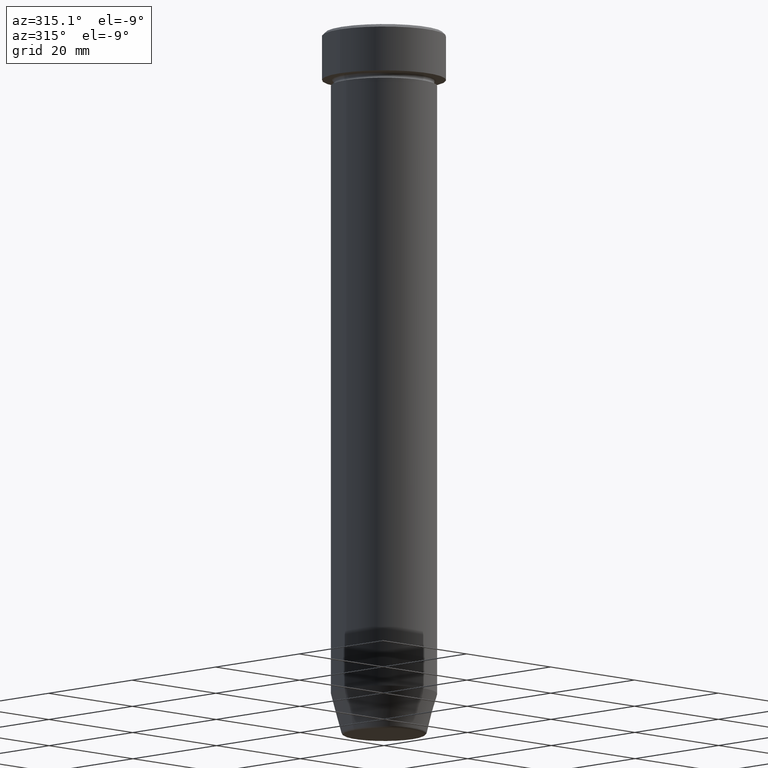
[diagram: clean part render]
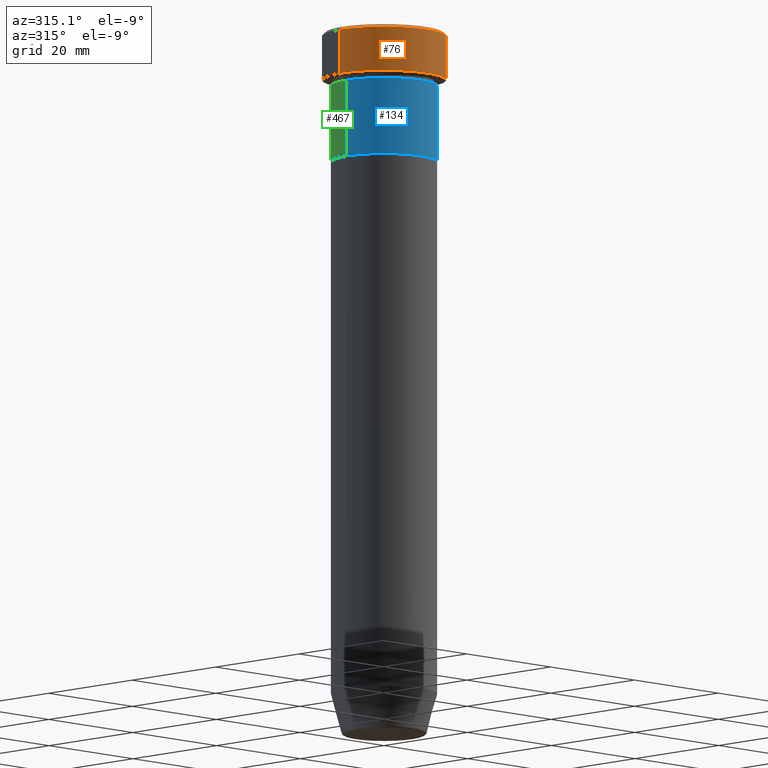
[diagram: same view with three faces highlighted in distinct colors, each labeled with its STEP entity id]
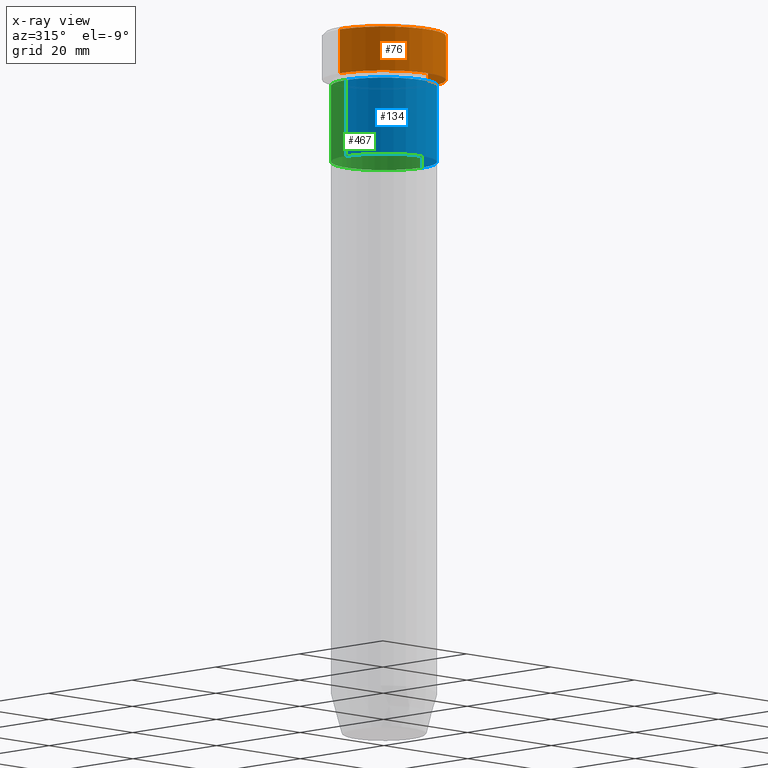
[diagram: x-ray of the same camera — body ghosted, the three highlighted faces saturated]
A machine part, auxiliary view with three faces highlighted in distinct colors.
The next image is the same camera in x-ray (body ghosted, the three faces saturated) — at least one of them is partly hidden behind the body in this view.
Their STEP definitions:

[orange] entity #76 — the highlighted cylindrical surface (partial cylindrical patch) has radius 10.5 mm, axis along (-0, -0, 1).
#25 = CARTESIAN_POINT ( 'NONE',  ( 10.50000000000000000, 0.000000000000000000, 0.000000000000000000 ) ) ;
#44 = VERTEX_POINT ( 'NONE', #349 ) ;
#47 = EDGE_CURVE ( 'NONE', #522, #480, #388, .T. ) ;
#66 = ORIENTED_EDGE ( 'NONE', *, *, #114, .F. ) ;
#70 = CIRCLE ( 'NONE', #585, 10.50000000000000000 ) ;
#76 = ADVANCED_FACE ( 'NONE', ( #224 ), #262, .T. ) ;
#104 = CARTESIAN_POINT ( 'NONE',  ( 0.000000000000000000, 0.000000000000000000, -8.000000000000000000 ) ) ;
#114 = EDGE_CURVE ( 'NONE', #44, #480, #139, .T. ) ;
#115 = DIRECTION ( 'NONE',  ( -0.000000000000000000, -0.000000000000000000, 1.000000000000000000 ) ) ;
#118 = CARTESIAN_POINT ( 'NONE',  ( -10.50000000000000000, 1.285879139104720831E-15, -0.5000000000000023315 ) ) ;
#126 = AXIS2_PLACEMENT_3D ( 'NONE', #271, #556, #278 ) ;
#139 = LINE ( 'NONE', #589, #206 ) ;
#171 = DIRECTION ( 'NONE',  ( -0.000000000000000000, -0.000000000000000000, 1.000000000000000000 ) ) ;
#190 = CARTESIAN_POINT ( 'NONE',  ( 10.50000000000000000, 0.000000000000000000, -8.000000000000000000 ) ) ;
#206 = VECTOR ( 'NONE', #324, 1000.000000000000000 ) ;
#224 = FACE_OUTER_BOUND ( 'NONE', #260, .T. ) ;
#251 = CARTESIAN_POINT ( 'NONE',  ( 10.50000000000000000, 0.000000000000000000, -0.5000000000000023315 ) ) ;
#260 = EDGE_LOOP ( 'NONE', ( #66, #496, #470, #302 ) ) ;
#262 = CYLINDRICAL_SURFACE ( 'NONE', #460, 10.50000000000000000 ) ;
#271 = CARTESIAN_POINT ( 'NONE',  ( 0.000000000000000000, 0.000000000000000000, -0.5000000000000023315 ) ) ;
#278 = DIRECTION ( 'NONE',  ( 1.000000000000000000, 0.000000000000000000, 0.000000000000000000 ) ) ;
#286 = VERTEX_POINT ( 'NONE', #190 ) ;
#287 = EDGE_CURVE ( 'NONE', #44, #286, #70, .T. ) ;
#302 = ORIENTED_EDGE ( 'NONE', *, *, #47, .T. ) ;
#324 = DIRECTION ( 'NONE',  ( -0.000000000000000000, -0.000000000000000000, 1.000000000000000000 ) ) ;
#349 = CARTESIAN_POINT ( 'NONE',  ( -10.50000000000000000, 1.285879139104720831E-15, -8.000000000000000000 ) ) ;
#372 = DIRECTION ( 'NONE',  ( 1.000000000000000000, 0.000000000000000000, 0.000000000000000000 ) ) ;
#387 = LINE ( 'NONE', #25, #511 ) ;
#388 = CIRCLE ( 'NONE', #126, 10.50000000000000000 ) ;
#410 = CARTESIAN_POINT ( 'NONE',  ( 0.000000000000000000, 0.000000000000000000, 0.000000000000000000 ) ) ;
#460 = AXIS2_PLACEMENT_3D ( 'NONE', #410, #171, #592 ) ;
#470 = ORIENTED_EDGE ( 'NONE', *, *, #487, .T. ) ;
#480 = VERTEX_POINT ( 'NONE', #118 ) ;
#487 = EDGE_CURVE ( 'NONE', #286, #522, #387, .T. ) ;
#496 = ORIENTED_EDGE ( 'NONE', *, *, #287, .T. ) ;
#511 = VECTOR ( 'NONE', #115, 1000.000000000000000 ) ;
#521 = DIRECTION ( 'NONE',  ( -0.000000000000000000, -0.000000000000000000, 1.000000000000000000 ) ) ;
#522 = VERTEX_POINT ( 'NONE', #251 ) ;
#556 = DIRECTION ( 'NONE',  ( 0.000000000000000000, 0.000000000000000000, -1.000000000000000000 ) ) ;
#585 = AXIS2_PLACEMENT_3D ( 'NONE', #104, #521, #372 ) ;
#589 = CARTESIAN_POINT ( 'NONE',  ( -10.50000000000000000, 1.285879139104720831E-15, 0.000000000000000000 ) ) ;
#592 = DIRECTION ( 'NONE',  ( 1.000000000000000000, 0.000000000000000000, 0.000000000000000000 ) ) ;

[blue] entity #134 — the highlighted cylindrical surface (partial cylindrical patch) has radius 9 mm, axis along (-0, -0, 1).
#6 = DIRECTION ( 'NONE',  ( -0.000000000000000000, -0.000000000000000000, 1.000000000000000000 ) ) ;
#28 = EDGE_LOOP ( 'NONE', ( #159, #103, #36, #398 ) ) ;
#36 = ORIENTED_EDGE ( 'NONE', *, *, #297, .T. ) ;
#41 = AXIS2_PLACEMENT_3D ( 'NONE', #590, #461, #365 ) ;
#50 = AXIS2_PLACEMENT_3D ( 'NONE', #65, #442, #243 ) ;
#54 = CARTESIAN_POINT ( 'NONE',  ( 9.000000000000000000, 0.000000000000000000, 0.000000000000000000 ) ) ;
#55 = VERTEX_POINT ( 'NONE', #217 ) ;
#65 = CARTESIAN_POINT ( 'NONE',  ( 0.000000000000000000, 0.000000000000000000, -22.00000000000000000 ) ) ;
#69 = VERTEX_POINT ( 'NONE', #89 ) ;
#89 = CARTESIAN_POINT ( 'NONE',  ( -9.000000000000000000, 1.102182119232617714E-15, -22.00000000000000000 ) ) ;
#93 = DIRECTION ( 'NONE',  ( -0.000000000000000000, -0.000000000000000000, 1.000000000000000000 ) ) ;
#103 = ORIENTED_EDGE ( 'NONE', *, *, #519, .T. ) ;
#134 = ADVANCED_FACE ( 'NONE', ( #274 ), #586, .T. ) ;
#148 = EDGE_CURVE ( 'NONE', #279, #386, #452, .T. ) ;
#159 = ORIENTED_EDGE ( 'NONE', *, *, #323, .F. ) ;
#217 = CARTESIAN_POINT ( 'NONE',  ( 9.000000000000000000, 0.000000000000000000, -22.00000000000000000 ) ) ;
#226 = VECTOR ( 'NONE', #93, 1000.000000000000000 ) ;
#243 = DIRECTION ( 'NONE',  ( 1.000000000000000000, 0.000000000000000000, 0.000000000000000000 ) ) ;
#268 = DIRECTION ( 'NONE',  ( 1.000000000000000000, 0.000000000000000000, 0.000000000000000000 ) ) ;
#274 = FACE_OUTER_BOUND ( 'NONE', #28, .T. ) ;
#279 = VERTEX_POINT ( 'NONE', #333 ) ;
#297 = EDGE_CURVE ( 'NONE', #55, #386, #477, .T. ) ;
#314 = DIRECTION ( 'NONE',  ( -0.000000000000000000, -0.000000000000000000, 1.000000000000000000 ) ) ;
#318 = CIRCLE ( 'NONE', #50, 9.000000000000000000 ) ;
#323 = EDGE_CURVE ( 'NONE', #69, #279, #598, .T. ) ;
#325 = CARTESIAN_POINT ( 'NONE',  ( 0.000000000000000000, 0.000000000000000000, 0.000000000000000000 ) ) ;
#333 = CARTESIAN_POINT ( 'NONE',  ( -9.000000000000000000, 1.102182119232617714E-15, -9.000000000000001776 ) ) ;
#365 = DIRECTION ( 'NONE',  ( 1.000000000000000000, 0.000000000000000000, 0.000000000000000000 ) ) ;
#386 = VERTEX_POINT ( 'NONE', #419 ) ;
#398 = ORIENTED_EDGE ( 'NONE', *, *, #148, .F. ) ;
#419 = CARTESIAN_POINT ( 'NONE',  ( 9.000000000000000000, 0.000000000000000000, -9.000000000000001776 ) ) ;
#442 = DIRECTION ( 'NONE',  ( -0.000000000000000000, -0.000000000000000000, 1.000000000000000000 ) ) ;
#452 = CIRCLE ( 'NONE', #41, 9.000000000000000000 ) ;
#461 = DIRECTION ( 'NONE',  ( -0.000000000000000000, -0.000000000000000000, 1.000000000000000000 ) ) ;
#474 = VECTOR ( 'NONE', #6, 1000.000000000000000 ) ;
#477 = LINE ( 'NONE', #54, #474 ) ;
#494 = AXIS2_PLACEMENT_3D ( 'NONE', #325, #314, #268 ) ;
#517 = CARTESIAN_POINT ( 'NONE',  ( -9.000000000000000000, 1.102182119232617714E-15, 0.000000000000000000 ) ) ;
#519 = EDGE_CURVE ( 'NONE', #69, #55, #318, .T. ) ;
#586 = CYLINDRICAL_SURFACE ( 'NONE', #494, 9.000000000000000000 ) ;
#590 = CARTESIAN_POINT ( 'NONE',  ( 0.000000000000000000, 0.000000000000000000, -9.000000000000001776 ) ) ;
#598 = LINE ( 'NONE', #517, #226 ) ;

[green] entity #467 — the highlighted cylindrical surface (partial cylindrical patch) has radius 9 mm, axis along (-0, -0, 1).
#6 = DIRECTION ( 'NONE',  ( -0.000000000000000000, -0.000000000000000000, 1.000000000000000000 ) ) ;
#10 = CIRCLE ( 'NONE', #357, 9.000000000000000000 ) ;
#18 = DIRECTION ( 'NONE',  ( 1.000000000000000000, 0.000000000000000000, 0.000000000000000000 ) ) ;
#49 = ORIENTED_EDGE ( 'NONE', *, *, #219, .F. ) ;
#54 = CARTESIAN_POINT ( 'NONE',  ( 9.000000000000000000, 0.000000000000000000, 0.000000000000000000 ) ) ;
#55 = VERTEX_POINT ( 'NONE', #217 ) ;
#69 = VERTEX_POINT ( 'NONE', #89 ) ;
#89 = CARTESIAN_POINT ( 'NONE',  ( -9.000000000000000000, 1.102182119232617714E-15, -22.00000000000000000 ) ) ;
#93 = DIRECTION ( 'NONE',  ( -0.000000000000000000, -0.000000000000000000, 1.000000000000000000 ) ) ;
#112 = DIRECTION ( 'NONE',  ( -0.000000000000000000, -0.000000000000000000, 1.000000000000000000 ) ) ;
#120 = CIRCLE ( 'NONE', #593, 9.000000000000000000 ) ;
#121 = DIRECTION ( 'NONE',  ( -0.000000000000000000, -0.000000000000000000, 1.000000000000000000 ) ) ;
#141 = AXIS2_PLACEMENT_3D ( 'NONE', #351, #112, #539 ) ;
#146 = CARTESIAN_POINT ( 'NONE',  ( 0.000000000000000000, 0.000000000000000000, -9.000000000000001776 ) ) ;
#165 = CYLINDRICAL_SURFACE ( 'NONE', #141, 9.000000000000000000 ) ;
#188 = DIRECTION ( 'NONE',  ( 1.000000000000000000, 0.000000000000000000, 0.000000000000000000 ) ) ;
#217 = CARTESIAN_POINT ( 'NONE',  ( 9.000000000000000000, 0.000000000000000000, -22.00000000000000000 ) ) ;
#219 = EDGE_CURVE ( 'NONE', #386, #279, #120, .T. ) ;
#226 = VECTOR ( 'NONE', #93, 1000.000000000000000 ) ;
#230 = EDGE_LOOP ( 'NONE', ( #441, #376, #49, #236 ) ) ;
#236 = ORIENTED_EDGE ( 'NONE', *, *, #297, .F. ) ;
#279 = VERTEX_POINT ( 'NONE', #333 ) ;
#295 = DIRECTION ( 'NONE',  ( -0.000000000000000000, -0.000000000000000000, 1.000000000000000000 ) ) ;
#297 = EDGE_CURVE ( 'NONE', #55, #386, #477, .T. ) ;
#323 = EDGE_CURVE ( 'NONE', #69, #279, #598, .T. ) ;
#333 = CARTESIAN_POINT ( 'NONE',  ( -9.000000000000000000, 1.102182119232617714E-15, -9.000000000000001776 ) ) ;
#351 = CARTESIAN_POINT ( 'NONE',  ( 0.000000000000000000, 0.000000000000000000, 0.000000000000000000 ) ) ;
#355 = FACE_OUTER_BOUND ( 'NONE', #230, .T. ) ;
#357 = AXIS2_PLACEMENT_3D ( 'NONE', #578, #121, #18 ) ;
#376 = ORIENTED_EDGE ( 'NONE', *, *, #323, .T. ) ;
#386 = VERTEX_POINT ( 'NONE', #419 ) ;
#418 = EDGE_CURVE ( 'NONE', #55, #69, #10, .T. ) ;
#419 = CARTESIAN_POINT ( 'NONE',  ( 9.000000000000000000, 0.000000000000000000, -9.000000000000001776 ) ) ;
#441 = ORIENTED_EDGE ( 'NONE', *, *, #418, .T. ) ;
#467 = ADVANCED_FACE ( 'NONE', ( #355 ), #165, .T. ) ;
#474 = VECTOR ( 'NONE', #6, 1000.000000000000000 ) ;
#477 = LINE ( 'NONE', #54, #474 ) ;
#517 = CARTESIAN_POINT ( 'NONE',  ( -9.000000000000000000, 1.102182119232617714E-15, 0.000000000000000000 ) ) ;
#539 = DIRECTION ( 'NONE',  ( 1.000000000000000000, 0.000000000000000000, 0.000000000000000000 ) ) ;
#578 = CARTESIAN_POINT ( 'NONE',  ( 0.000000000000000000, 0.000000000000000000, -22.00000000000000000 ) ) ;
#593 = AXIS2_PLACEMENT_3D ( 'NONE', #146, #295, #188 ) ;
#598 = LINE ( 'NONE', #517, #226 ) ;